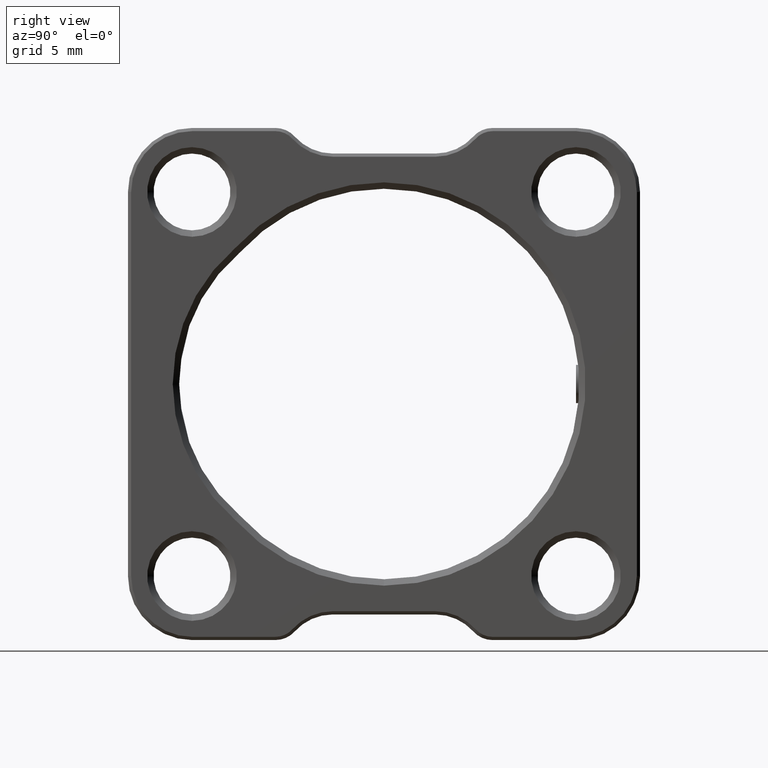
[diagram: clean part render]
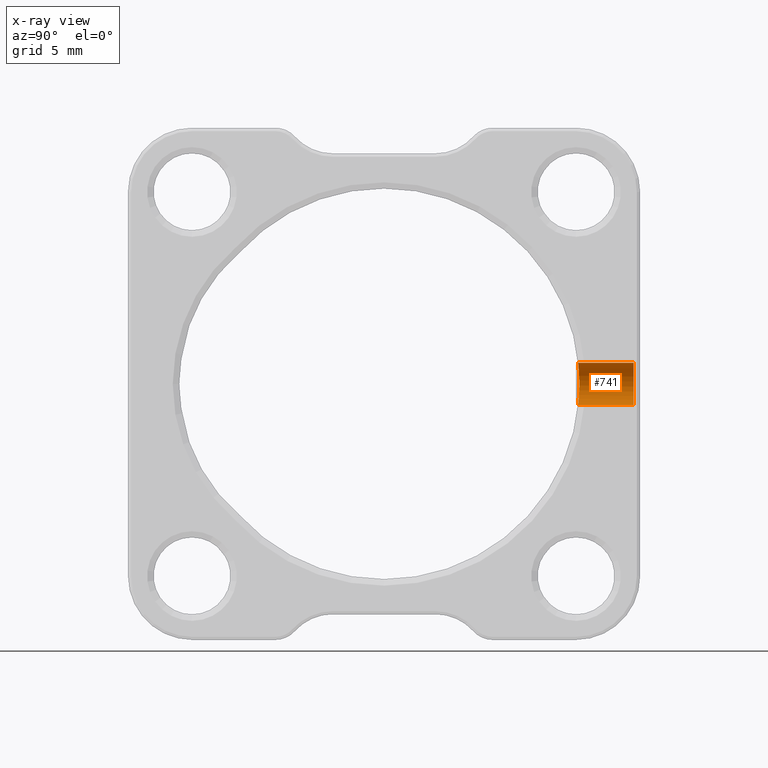
[diagram: x-ray — body ghosted, one internal face saturated and labeled with its STEP entity id]
A machine part, right view, then the same camera in x-ray: the body is ghosted and one INTERNAL B-rep face — a face not visible from any outside direction — is saturated and labeled: STEP entity #741.
In plain terms, the highlighted cylindrical surface (edge-blend (fillet) strip) has radius 1.65 mm, axis along (-0, 1, -0).
Its self-contained STEP definition (entity closure, byte-faithful):
#99 = CARTESIAN_POINT ( 'NONE',  ( -14.70960063692995057, 17.26977615000689070, 38.35000000000001563 ) ) ;
#131 = CARTESIAN_POINT ( 'NONE',  ( -15.44161806147307203, 17.28711026120555516, 41.48268228754825060 ) ) ;
#308 = ORIENTED_EDGE ( 'NONE', *, *, #9493, .T. ) ;
#631 = CARTESIAN_POINT ( 'NONE',  ( -14.70960063692995057, 22.10930122340910842, 41.65000000000001279 ) ) ;
#730 = VECTOR ( 'NONE', #2753, 1000.000000000000000 ) ;
#741 = ADVANCED_FACE ( 'NONE', ( #5424 ), #5188, .F. ) ;
#825 = DIRECTION ( 'NONE',  ( -0.000000000000000000, 1.000000000000000000, -0.000000000000000000 ) ) ;
#910 = CARTESIAN_POINT ( 'NONE',  ( -14.81870598236799985, 17.26977615000689781, 41.65000000000000568 ) ) ;
#945 = CARTESIAN_POINT ( 'NONE',  ( -16.30671911500549598, 17.35365584599277256, 39.57179436695167851 ) ) ;
#1274 = EDGE_CURVE ( 'NONE', #8327, #2873, #1601, .T. ) ;
#1300 = AXIS2_PLACEMENT_3D ( 'NONE', #8044, #5736, #4562 ) ;
#1308 = ORIENTED_EDGE ( 'NONE', *, *, #9231, .F. ) ;
#1313 = CARTESIAN_POINT ( 'NONE',  ( -14.70960063692995057, 21.60930122340910842, 38.35000000000001563 ) ) ;
#1601 = CIRCLE ( 'NONE', #3206, 1.649999999999998579 ) ;
#1647 = CARTESIAN_POINT ( 'NONE',  ( -16.19279801016760700, 17.34210072051133622, 39.26902544070289025 ) ) ;
#1719 = CARTESIAN_POINT ( 'NONE',  ( -16.35963975398084713, 17.35930545574548489, 39.89289418654635000 ) ) ;
#1992 = CARTESIAN_POINT ( 'NONE',  ( -14.70960063692995057, 17.26977615000689070, 38.35000000000001563 ) ) ;
#2314 = CARTESIAN_POINT ( 'NONE',  ( -15.80051220995613548, 17.30878607711649764, 41.24257033530887639 ) ) ;
#2349 = CARTESIAN_POINT ( 'NONE',  ( -15.13697984207007607, 17.27543213748200301, 41.59731601728306316 ) ) ;
#2377 = CARTESIAN_POINT ( 'NONE',  ( -15.44105352445377655, 17.28708293049655964, 38.51703901987401935 ) ) ;
#2410 = CARTESIAN_POINT ( 'NONE',  ( -16.02863651520549482, 17.32629378698254285, 41.01435730649016165 ) ) ;
#2753 = DIRECTION ( 'NONE',  ( -0.000000000000000000, 1.000000000000000000, -0.000000000000000000 ) ) ;
#2873 = VERTEX_POINT ( 'NONE', #5889 ) ;
#3055 = CARTESIAN_POINT ( 'NONE',  ( -15.13835663215838245, 17.27546893226271862, 38.40303161364020923 ) ) ;
#3089 = CARTESIAN_POINT ( 'NONE',  ( -16.31613583010090451, 17.35443979612094978, 40.43328467498645296 ) ) ;
#3122 = CARTESIAN_POINT ( 'NONE',  ( -14.81732730450058177, 17.26977615000689070, 38.35000000000001563 ) ) ;
#3206 = AXIS2_PLACEMENT_3D ( 'NONE', #6050, #825, #6712 ) ;
#3604 = DIRECTION ( 'NONE',  ( -0.000000000000000000, 1.000000000000000000, -0.000000000000000000 ) ) ;
#3677 = EDGE_LOOP ( 'NONE', ( #308, #9201, #5578, #1308 ) ) ;
#3843 = CARTESIAN_POINT ( 'NONE',  ( -15.95349423236418929, 17.32052655384465467, 38.91046235838283707 ) ) ;
#4038 = B_SPLINE_CURVE_WITH_KNOTS ( 'NONE', 3,
 ( #5296, #910, #9027, #2349, #6134, #131, #6067, #8967, #2314, #2410, #4602, #3089, #7542, #1719, #5330, #945, #6910, #1647, #8378, #6845, #3843, #9000, #7510, #8312, #2377, #5233, #3055, #8936, #3122, #99 ),
 .UNSPECIFIED., .F., .F.,
 ( 4, 2, 2, 2, 2, 2, 2, 2, 2, 2, 2, 2, 2, 2, 4 ),
 ( 0.000000000000000000, 0.0003226517074851885142, 0.0006453034149703770284, 0.0009679551224555657052, 0.001290606829940754057, 0.001935910244911116665, 0.002581213659881479491, 0.002903865367366661662, 0.003226517074851842967, 0.003549168782337024704, 0.003871820489822206009, 0.004194472197307387747, 0.004517123904792565148, 0.004839775612277741682, 0.005162427319762919083 ),
 .UNSPECIFIED. ) ;
#4562 = DIRECTION ( 'NONE',  ( 0.000000000000000000, 0.000000000000000000, 1.000000000000000000 ) ) ;
#4602 = CARTESIAN_POINT ( 'NONE',  ( -16.15153930116928649, 17.33797424129607023, 40.83036367035576575 ) ) ;
#4941 = CARTESIAN_POINT ( 'NONE',  ( -14.70960063692995057, 22.10930122340910842, 38.35000000000001563 ) ) ;
#4962 = VERTEX_POINT ( 'NONE', #6011 ) ;
#5080 = VECTOR ( 'NONE', #3604, 1000.000000000000000 ) ;
#5188 = CYLINDRICAL_SURFACE ( 'NONE', #1300, 1.649999999999998579 ) ;
#5195 = EDGE_CURVE ( 'NONE', #9002, #8327, #8694, .T. ) ;
#5233 = CARTESIAN_POINT ( 'NONE',  ( -15.24122287402833464, 17.27876582913296843, 38.43424957535831510 ) ) ;
#5296 = CARTESIAN_POINT ( 'NONE',  ( -14.70960063692995057, 17.26977615000689070, 41.65000000000001279 ) ) ;
#5330 = CARTESIAN_POINT ( 'NONE',  ( -16.34888934234231783, 17.35813160104037323, 39.78348201577671261 ) ) ;
#5418 = LINE ( 'NONE', #631, #5080 ) ;
#5424 = FACE_OUTER_BOUND ( 'NONE', #3677, .T. ) ;
#5578 = ORIENTED_EDGE ( 'NONE', *, *, #1274, .T. ) ;
#5736 = DIRECTION ( 'NONE',  ( -0.000000000000000000, 1.000000000000000000, -0.000000000000000000 ) ) ;
#5889 = CARTESIAN_POINT ( 'NONE',  ( -14.70960063692995057, 21.60930122340910842, 41.65000000000001279 ) ) ;
#6011 = CARTESIAN_POINT ( 'NONE',  ( -14.70960063692995057, 17.26977615000689070, 41.65000000000001279 ) ) ;
#6050 = CARTESIAN_POINT ( 'NONE',  ( -14.70960063692995057, 21.60930122340910842, 40.00000000000001421 ) ) ;
#6067 = CARTESIAN_POINT ( 'NONE',  ( -15.53636563115968272, 17.29203916618941861, 41.43198586463854838 ) ) ;
#6134 = CARTESIAN_POINT ( 'NONE',  ( -15.24182175093191560, 17.27878694284502359, 41.56554685699742890 ) ) ;
#6712 = DIRECTION ( 'NONE',  ( 0.000000000000000000, 0.000000000000000000, 1.000000000000000000 ) ) ;
#6845 = CARTESIAN_POINT ( 'NONE',  ( -16.02170698919822911, 17.32633397879252968, 38.99380575191997877 ) ) ;
#6910 = CARTESIAN_POINT ( 'NONE',  ( -16.27552791199429194, 17.35037842620975113, 39.46889735123212972 ) ) ;
#7510 = CARTESIAN_POINT ( 'NONE',  ( -15.71619637139893833, 17.30289479854498325, 38.68820277084397929 ) ) ;
#7542 = CARTESIAN_POINT ( 'NONE',  ( -16.35952207454539220, 17.35929272321724071, 40.21601440227869517 ) ) ;
#8044 = CARTESIAN_POINT ( 'NONE',  ( -14.70960063692995057, 22.10930122340910842, 40.00000000000001421 ) ) ;
#8312 = CARTESIAN_POINT ( 'NONE',  ( -15.53755318938842045, 17.29210584518046190, 38.56872730971695518 ) ) ;
#8327 = VERTEX_POINT ( 'NONE', #1313 ) ;
#8378 = CARTESIAN_POINT ( 'NONE',  ( -16.14114171445100610, 17.33709727718456506, 39.17250976567577680 ) ) ;
#8694 = LINE ( 'NONE', #4941, #730 ) ;
#8936 = CARTESIAN_POINT ( 'NONE',  ( -14.92675504660998342, 17.27096232327785330, 38.36079784869789933 ) ) ;
#8967 = CARTESIAN_POINT ( 'NONE',  ( -15.71567743603278444, 17.30285846354053803, 41.31222457929857228 ) ) ;
#9000 = CARTESIAN_POINT ( 'NONE',  ( -15.79947932278369116, 17.30870714358900386, 38.75640521093693280 ) ) ;
#9002 = VERTEX_POINT ( 'NONE', #1992 ) ;
#9027 = CARTESIAN_POINT ( 'NONE',  ( -14.92597180973006310, 17.27095319152360986, 41.63928489276158018 ) ) ;
#9201 = ORIENTED_EDGE ( 'NONE', *, *, #5195, .T. ) ;
#9231 = EDGE_CURVE ( 'NONE', #4962, #2873, #5418, .T. ) ;
#9493 = EDGE_CURVE ( 'NONE', #4962, #9002, #4038, .T. ) ;